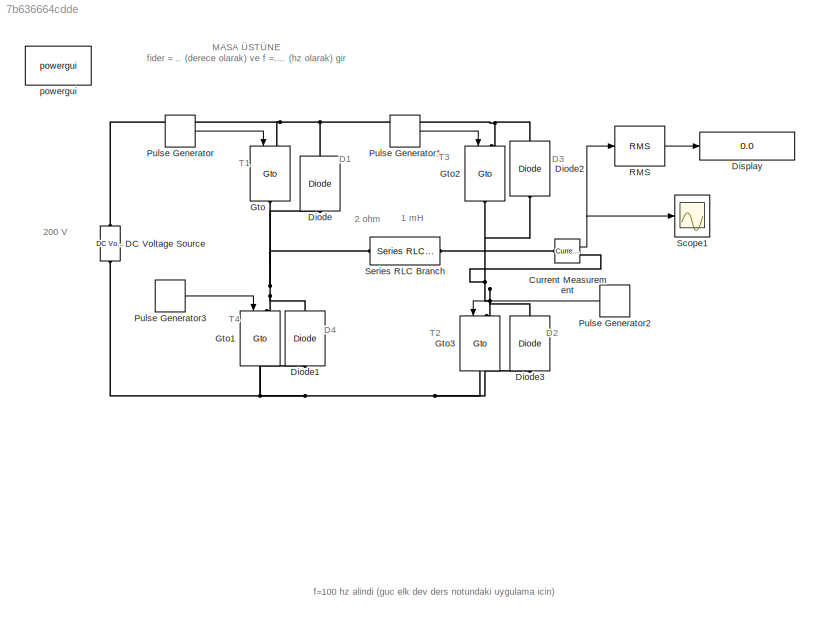
MODEL slx_7b636664cdde
KIND model
CONFIG AbsTol = auto
CONFIG EnableMultiTasking = on
CONFIG FixedStep = auto
CONFIG MaxStep = auto
CONFIG MinStep = auto
CONFIG RelTol = 1e-3
CONFIG SampleTimeConstraint = Unconstrained
CONFIG Solver = ode23tb
CONFIG SolverName = ode23tb
CONFIG StartTime = 0.0
CONFIG StopTime = 0.02
BLOCK [Reference] Current Measurement  REF=powerlib/Measurements/Current Measurement
  Ports = [0, 1, 0, 0, 0, 1, 1]
  SourceBlock = powerlib/Measurements/Current Measurement
  SourceProductBaseCode = PS
  SourceType = Current Measurement
BLOCK [Reference] DC Voltage Source  REF=powerlib/Electrical
Sources/DC Voltage Source
  Ports = [0, 0, 0, 0, 0, 1, 1]
  SourceBlock = powerlib/Electrical\nSources/DC Voltage Source
  SourceProductBaseCode = PS
  SourceType = DC Voltage Source
BLOCK [Reference] Diode  REF=powerlib/Power
Electronics/Diode
  Ports = [0, 0, 0, 0, 0, 1, 1]
  SourceBlock = powerlib/Power\nElectronics/Diode
  SourceProductBaseCode = PS
  SourceType = Diode
BLOCK [Reference] Diode1  REF=powerlib/Power
Electronics/Diode
  Ports = [0, 0, 0, 0, 0, 1, 1]
  SourceBlock = powerlib/Power\nElectronics/Diode
  SourceProductBaseCode = PS
  SourceType = Diode
BLOCK [Reference] Diode2  REF=powerlib/Power
Electronics/Diode
  Ports = [0, 0, 0, 0, 0, 1, 1]
  SourceBlock = powerlib/Power\nElectronics/Diode
  SourceProductBaseCode = PS
  SourceType = Diode
BLOCK [Reference] Diode3  REF=powerlib/Power
Electronics/Diode
  Ports = [0, 0, 0, 0, 0, 1, 1]
  SourceBlock = powerlib/Power\nElectronics/Diode
  SourceProductBaseCode = PS
  SourceType = Diode
BLOCK [Display] Display
  Decimation = 1
  Ports = [1]
BLOCK [Reference] Gto  REF=powerlib/Power
Electronics/Gto
  Ports = [1, 0, 0, 0, 0, 1, 1]
  SourceBlock = powerlib/Power\nElectronics/Gto
  SourceProductBaseCode = PS
  SourceType = Gto
BLOCK [Reference] Gto1  REF=powerlib/Power
Electronics/Gto
  Ports = [1, 0, 0, 0, 0, 1, 1]
  SourceBlock = powerlib/Power\nElectronics/Gto
  SourceProductBaseCode = PS
  SourceType = Gto
BLOCK [Reference] Gto2  REF=powerlib/Power
Electronics/Gto
  Ports = [1, 0, 0, 0, 0, 1, 1]
  SourceBlock = powerlib/Power\nElectronics/Gto
  SourceProductBaseCode = PS
  SourceType = Gto
BLOCK [Reference] Gto3  REF=powerlib/Power
Electronics/Gto
  Ports = [1, 0, 0, 0, 0, 1, 1]
  SourceBlock = powerlib/Power\nElectronics/Gto
  SourceProductBaseCode = PS
  SourceType = Gto
BLOCK [DiscretePulseGenerator] Pulse Generator
  Period = 1/f
  PhaseDelay = -(fider/360)*(1/f)
  Ports = [0, 1]
  PulseType = Time based
  PulseWidth = 50
BLOCK [DiscretePulseGenerator] Pulse Generator1
  Period = 1/f
  PhaseDelay = (1/f)*0.5
  Ports = [0, 1]
  PulseType = Time based
  PulseWidth = 50
BLOCK [DiscretePulseGenerator] Pulse Generator2
  Period = 1/f
  Ports = [0, 1]
  PulseType = Time based
  PulseWidth = 50
BLOCK [DiscretePulseGenerator] Pulse Generator3
  Period = 1/f
  PhaseDelay = (1/f)*(180-fider)/360
  Ports = [0, 1]
  PulseType = Time based
  PulseWidth = 50
BLOCK [Reference] RMS  REF=powerlib_meascontrol/Measurements/RMS
  Ports = [1, 1]
  SourceBlock = powerlib_meascontrol/Measurements/RMS
  SourceProductBaseCode = PS
  SourceType = RMS
BLOCK [Scope] Scope1
  Floating = off
  NumInputPorts = 1
  Ports = [1]
  ScopeSpecificationString = Simulink.scopes.TimeScopeBlockCfg('CurrentConfiguration', extmgr.ConfigurationSet(extmgr.Configuration('Core','General UI',true,'FigureColor',[1 1 1]),extmgr.Configuration('Core','Source UI',true),extmgr.Configuration('Sources','WiredSimulink',true,'DataLoggingSaveFormat','StructureWithTime','DataLoggingDecimation','1','DataLoggingDecimateData',true),extmgr.Configuration('Visuals','Time Domain',tr...<+1784ch>
BLOCK [Reference] Series RLC Branch  REF=powerlib/Elements/Series RLC Branch
  Ports = [0, 0, 0, 0, 0, 1, 1]
  SourceBlock = powerlib/Elements/Series RLC Branch
  SourceProductBaseCode = PS
  SourceType = Series RLC Branch
BLOCK [Reference] powergui  REF=powerlib/powergui
  Ports = []
  Priority = 1
  SourceBlock = powerlib/powergui
  SourceProductBaseCode = PS
  SourceType = PSB option menu block
ANNOTATION (root): 1 mH
ANNOTATION (root): 2 ohm
ANNOTATION (root): 200 V
ANNOTATION (root): D1
ANNOTATION (root): D2
ANNOTATION (root): D3
ANNOTATION (root): D4
ANNOTATION (root): MASA ÜSTÜNE fider = .. (derece olarak) ve f =.... (hz olarak) gir
ANNOTATION (root): T1
ANNOTATION (root): T2
ANNOTATION (root): T3
ANNOTATION (root): T4
ANNOTATION (root): f=100 hz alindi (guc elk dev ders notundaki uygulama icin)
NET Current Measurement:1 -> RMS:1, Scope1:1
LINE Pulse Generator1:1 -> Gto2:1
LINE Pulse Generator2:1 -> Gto3:1
LINE Pulse Generator3:1 -> Gto1:1
LINE Pulse Generator:1 -> Gto:1
LINE RMS:1 -> Display:1
PLINE Current Measurement:LConn1 -- Series RLC Branch:RConn1
PNET net1: Current Measurement:RConn1 -- Diode2:LConn1 -- Diode3:RConn1 -- Gto2:RConn1 -- Gto3:LConn1
PNET net2: DC Voltage Source:LConn1 -- Diode1:LConn1 -- Diode3:LConn1 -- Gto1:RConn1 -- Gto3:RConn1
PNET net3: DC Voltage Source:RConn1 -- Diode2:RConn1 -- Diode:RConn1 -- Gto2:LConn1 -- Gto:LConn1
PNET net4: Diode1:RConn1 -- Diode:LConn1 -- Gto1:LConn1 -- Gto:RConn1 -- Series RLC Branch:LConn1
note: NET lines group one-source signal fan-out (src -> all destinations, sorted); 1:1 wires keep LINE; PNET lines group multi-terminal physical nets as a canonical sorted terminal list (undirected conserving connections); 2-terminal nets keep the pairwise PLINE form
